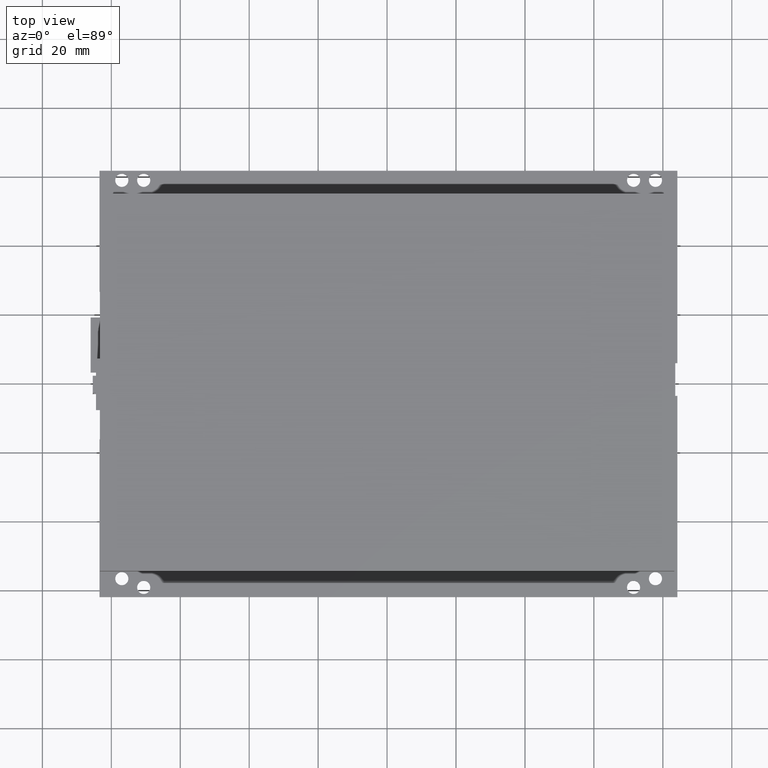
[diagram: clean part render]
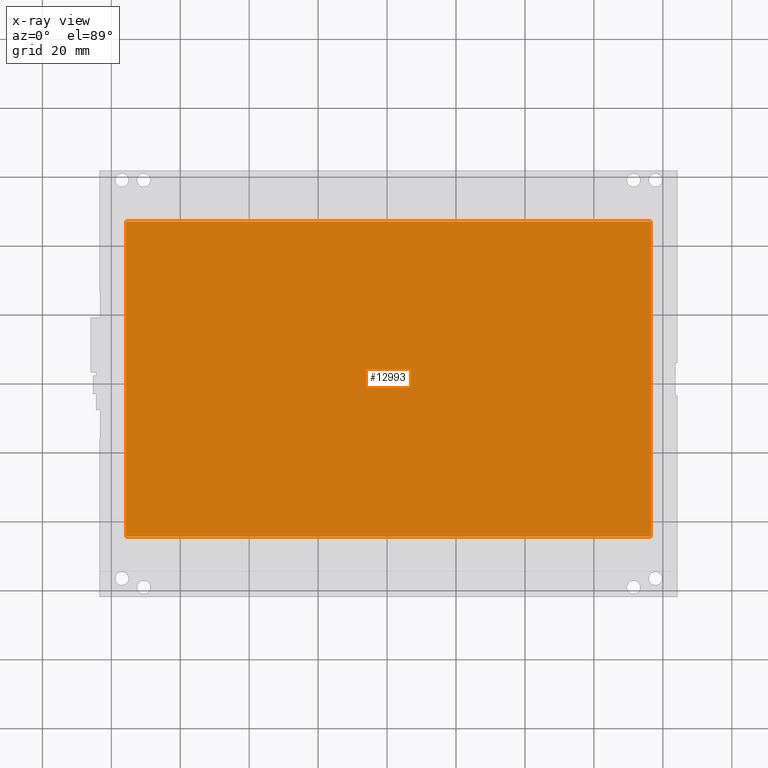
[diagram: x-ray — body ghosted, one internal face saturated and labeled with its STEP entity id]
A machine part, top view, then the same camera in x-ray: the body is ghosted and one INTERNAL B-rep face — a face not visible from any outside direction — is saturated and labeled: STEP entity #12993.
In plain terms, the highlighted planar face has unit normal (0, 0, -1).
Its self-contained STEP definition (entity closure, byte-faithful):
#706 = CIRCLE ( 'NONE', #710, 0.004999999999999995800 ) ;
#710 = AXIS2_PLACEMENT_3D ( 'NONE', #1375, #1376, #1377 ) ;
#776 = VECTOR ( 'NONE', #1542, 39.37007874015748100 ) ;
#777 = VECTOR ( 'NONE', #2140, 39.37007874015748100 ) ;
#779 = VECTOR ( 'NONE', #2145, 39.37007874015748100 ) ;
#863 = AXIS2_PLACEMENT_3D ( 'NONE', #1983, #1995, #1996 ) ;
#892 = VECTOR ( 'NONE', #2151, 39.37007874015748100 ) ;
#893 = CIRCLE ( 'NONE', #895, 0.004999999999999995800 ) ;
#895 = AXIS2_PLACEMENT_3D ( 'NONE', #2152, #2153, #2154 ) ;
#1375 = CARTESIAN_POINT ( 'NONE',  ( 0.01574803149606262100, 0.03937007874015768100, 0.3737007874015747500 ) ) ;
#1376 = DIRECTION ( 'NONE',  ( 0.0000000000000000000, 0.0000000000000000000, 1.000000000000000000 ) ) ;
#1377 = DIRECTION ( 'NONE',  ( 1.000000000000000000, 0.0000000000000000000, 0.0000000000000000000 ) ) ;
#1539 = LINE ( 'NONE', #1541, #776 ) ;
#1541 = CARTESIAN_POINT ( 'NONE',  ( 3.015748031496063000, -1.764566929133857900, 0.3737007874015747500 ) ) ;
#1542 = DIRECTION ( 'NONE',  ( 0.0000000000000000000, 1.000000000000000000, 0.0000000000000000000 ) ) ;
#1983 = CARTESIAN_POINT ( 'NONE',  ( 3.015748031496060700, 1.835433070866141900, 0.3737007874015747500 ) ) ;
#1988 = FACE_OUTER_BOUND ( 'NONE', #13324, .T. ) ;
#1992 = FACE_BOUND ( 'NONE', #13325, .T. ) ;
#1993 = PLANE ( 'NONE',  #863 ) ;
#1995 = DIRECTION ( 'NONE',  ( 0.0000000000000000000, 0.0000000000000000000, -1.000000000000000000 ) ) ;
#1996 = DIRECTION ( 'NONE',  ( -1.000000000000000000, 0.0000000000000000000, -0.0000000000000000000 ) ) ;
#2138 = LINE ( 'NONE', #2139, #777 ) ;
#2139 = CARTESIAN_POINT ( 'NONE',  ( -2.984251968503937900, -1.764566929133857900, 0.3737007874015747500 ) ) ;
#2140 = DIRECTION ( 'NONE',  ( 1.000000000000000000, 0.0000000000000000000, 0.0000000000000000000 ) ) ;
#2143 = LINE ( 'NONE', #2144, #779 ) ;
#2144 = CARTESIAN_POINT ( 'NONE',  ( -2.984251968503937900, -1.764566929133857900, 0.3737007874015747500 ) ) ;
#2145 = DIRECTION ( 'NONE',  ( -1.517693329813479600E-016, -1.000000000000000000, -0.0000000000000000000 ) ) ;
#2149 = LINE ( 'NONE', #2150, #892 ) ;
#2150 = CARTESIAN_POINT ( 'NONE',  ( -2.984251968503937500, 1.835433070866141900, 0.3737007874015747500 ) ) ;
#2151 = DIRECTION ( 'NONE',  ( -1.000000000000000000, -0.0000000000000000000, -0.0000000000000000000 ) ) ;
#2152 = CARTESIAN_POINT ( 'NONE',  ( 0.01574803149606262100, 0.03937007874015768100, 0.3737007874015747500 ) ) ;
#2153 = DIRECTION ( 'NONE',  ( 0.0000000000000000000, 0.0000000000000000000, 1.000000000000000000 ) ) ;
#2154 = DIRECTION ( 'NONE',  ( 1.000000000000000000, 0.0000000000000000000, 0.0000000000000000000 ) ) ;
#8453 = CARTESIAN_POINT ( 'NONE',  ( 0.01074803149606262700, 0.03937007874015768100, 0.3737007874015747500 ) ) ;
#8454 = CARTESIAN_POINT ( 'NONE',  ( 0.02074803149606261800, 0.03937007874015768100, 0.3737007874015747500 ) ) ;
#8469 = CARTESIAN_POINT ( 'NONE',  ( 3.015748031496063000, 1.835433070866141900, 0.3737007874015747500 ) ) ;
#8486 = CARTESIAN_POINT ( 'NONE',  ( 3.015748031496063000, -1.764566929133857900, 0.3737007874015747500 ) ) ;
#8678 = CARTESIAN_POINT ( 'NONE',  ( -2.984251968503937900, -1.764566929133857900, 0.3737007874015747500 ) ) ;
#8680 = CARTESIAN_POINT ( 'NONE',  ( -2.984251968503937500, 1.835433070866141900, 0.3737007874015747500 ) ) ;
#12854 = EDGE_CURVE ( 'NONE', #16039, #16040, #706, .T. ) ;
#12909 = EDGE_CURVE ( 'NONE', #16072, #16055, #1539, .T. ) ;
#12993 = ADVANCED_FACE ( 'NONE', ( #1992, #1988 ), #1993, .F. ) ;
#13021 = EDGE_CURVE ( 'NONE', #16298, #16072, #2138, .T. ) ;
#13023 = EDGE_CURVE ( 'NONE', #16300, #16298, #2143, .T. ) ;
#13025 = EDGE_CURVE ( 'NONE', #16055, #16300, #2149, .T. ) ;
#13026 = EDGE_CURVE ( 'NONE', #16040, #16039, #893, .T. ) ;
#13324 = EDGE_LOOP ( 'NONE', ( #13873, #13874, #13875, #13876 ) ) ;
#13325 = EDGE_LOOP ( 'NONE', ( #13871, #13872 ) ) ;
#13871 = ORIENTED_EDGE ( 'NONE', *, *, #13026, .F. ) ;
#13872 = ORIENTED_EDGE ( 'NONE', *, *, #12854, .F. ) ;
#13873 = ORIENTED_EDGE ( 'NONE', *, *, #12909, .T. ) ;
#13874 = ORIENTED_EDGE ( 'NONE', *, *, #13025, .T. ) ;
#13875 = ORIENTED_EDGE ( 'NONE', *, *, #13023, .T. ) ;
#13876 = ORIENTED_EDGE ( 'NONE', *, *, #13021, .T. ) ;
#16039 = VERTEX_POINT ( 'NONE', #8453 ) ;
#16040 = VERTEX_POINT ( 'NONE', #8454 ) ;
#16055 = VERTEX_POINT ( 'NONE', #8469 ) ;
#16072 = VERTEX_POINT ( 'NONE', #8486 ) ;
#16298 = VERTEX_POINT ( 'NONE', #8678 ) ;
#16300 = VERTEX_POINT ( 'NONE', #8680 ) ;